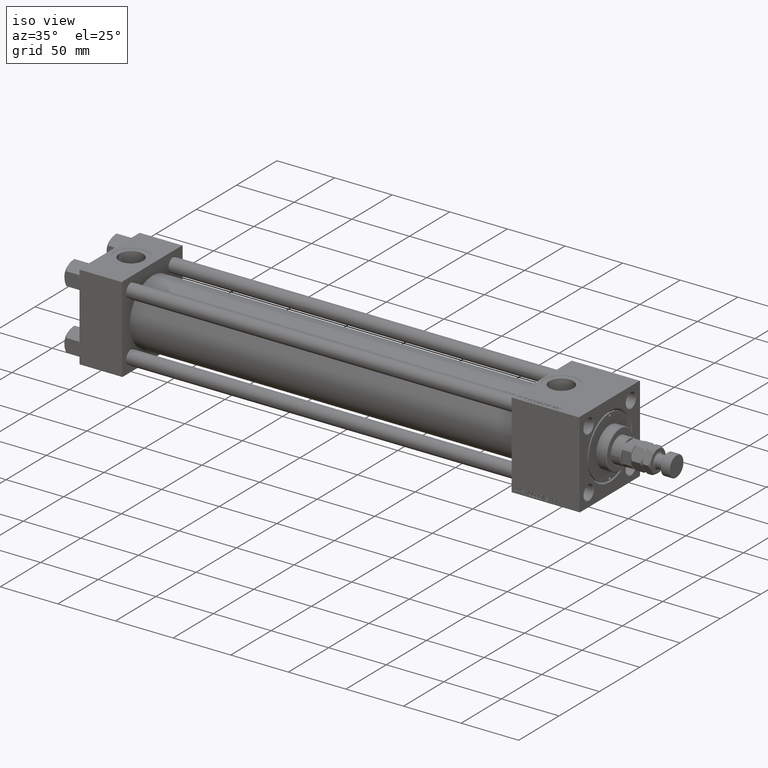
[diagram: clean part render]
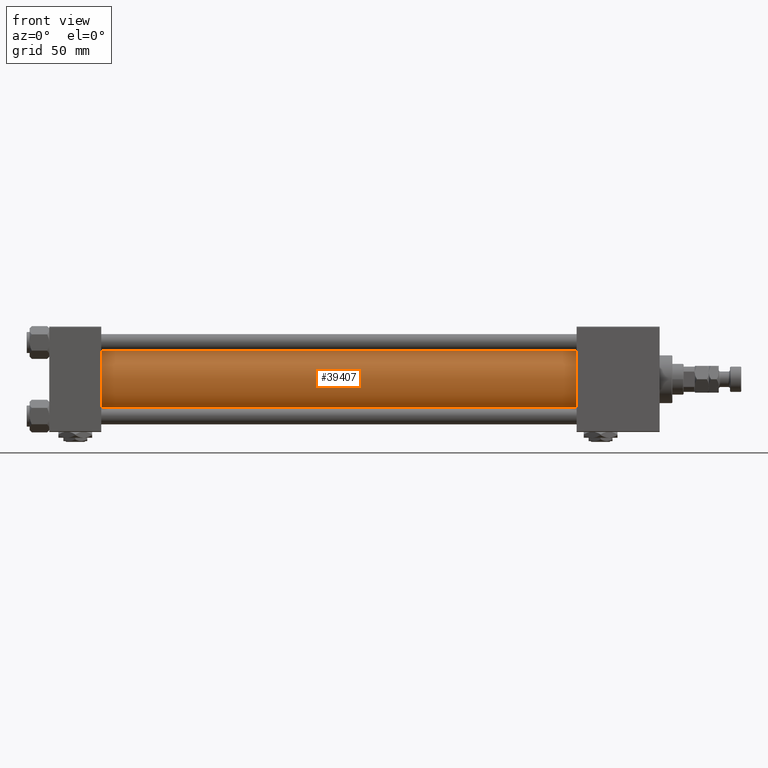
[diagram: tour spotlight — one face highlighted and labeled with its STEP entity id]
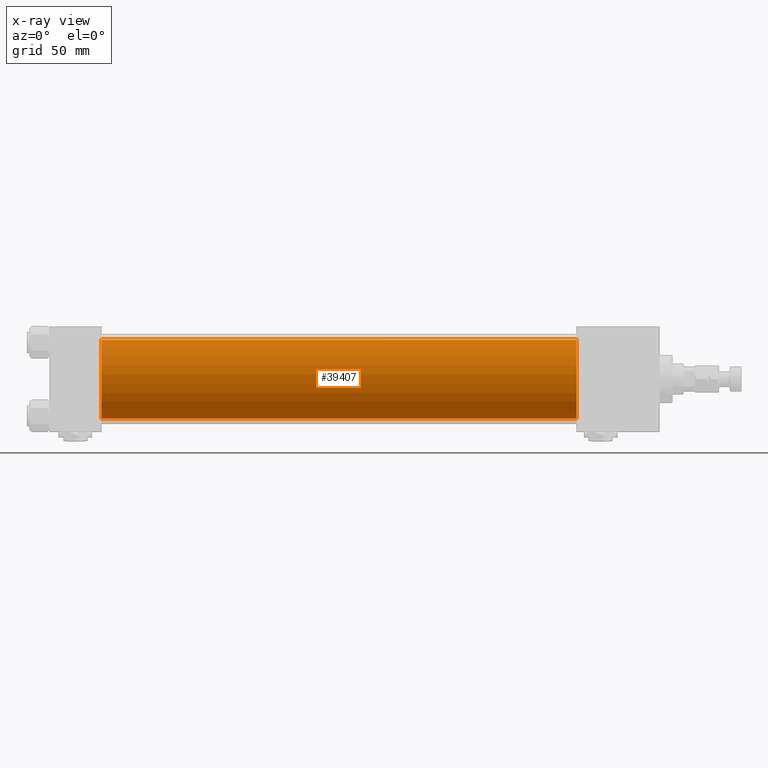
[diagram: x-ray of the same camera — body ghosted, this tour face saturated]
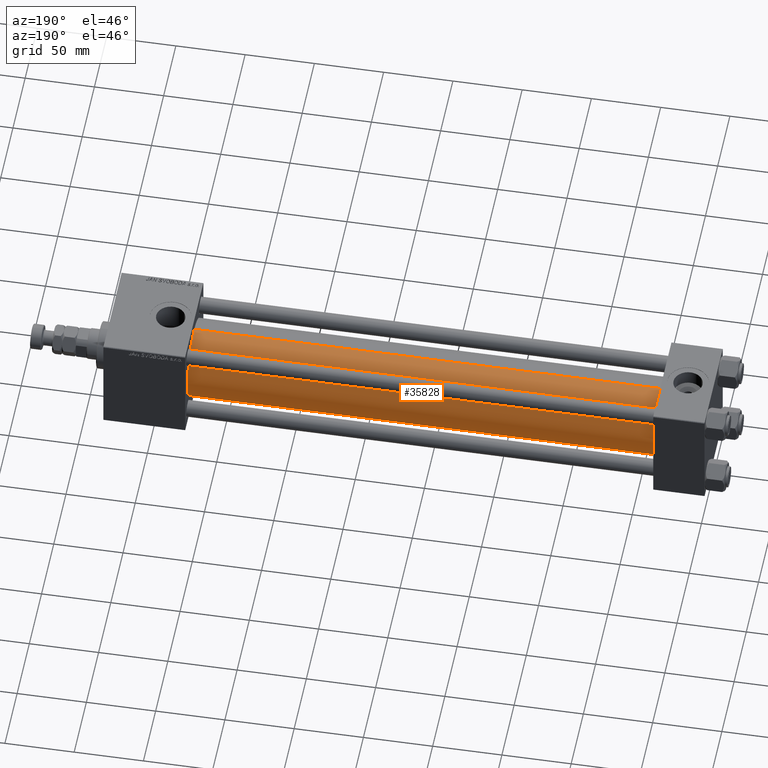
[diagram: tour spotlight — one face highlighted and labeled with its STEP entity id]
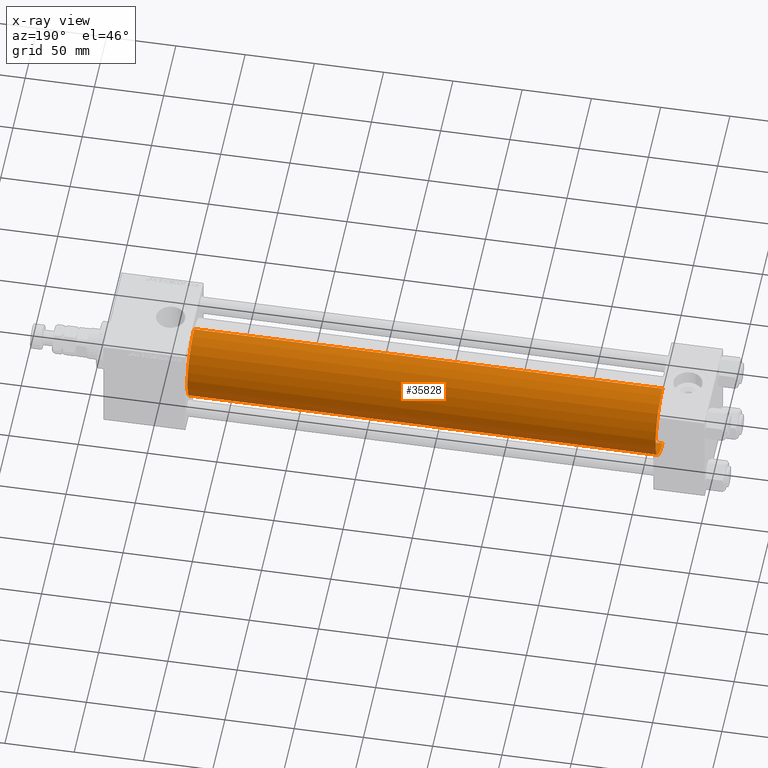
[diagram: x-ray of the same camera — body ghosted, this tour face saturated]
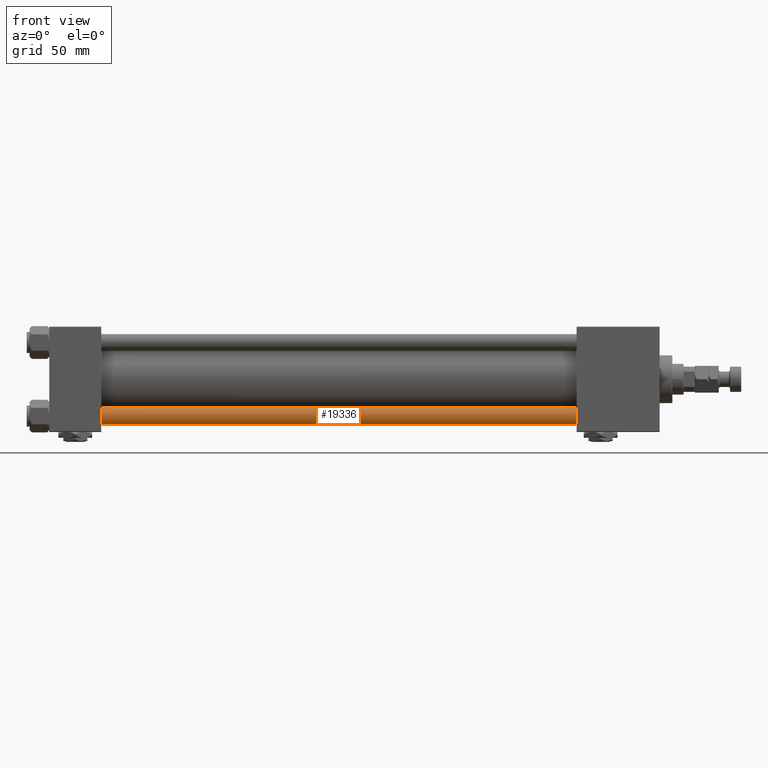
[diagram: tour spotlight — one face highlighted and labeled with its STEP entity id]
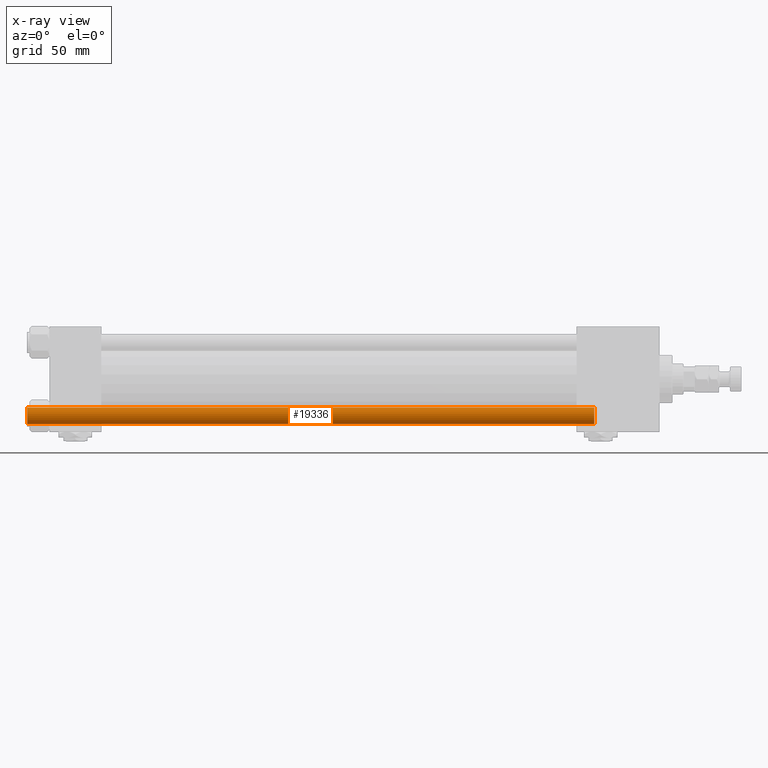
[diagram: x-ray of the same camera — body ghosted, this tour face saturated]
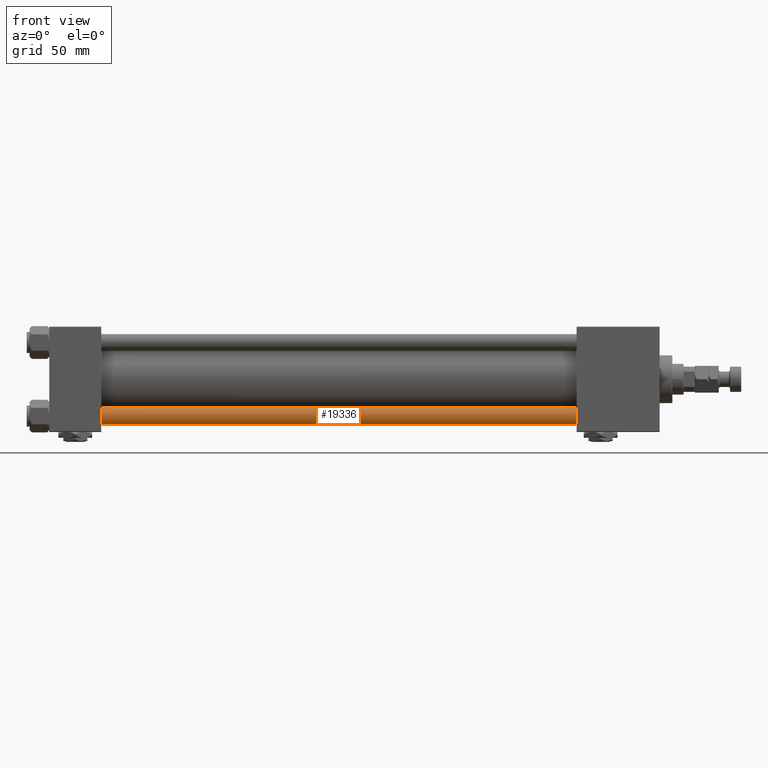
[diagram: tour spotlight — one face highlighted and labeled with its STEP entity id]
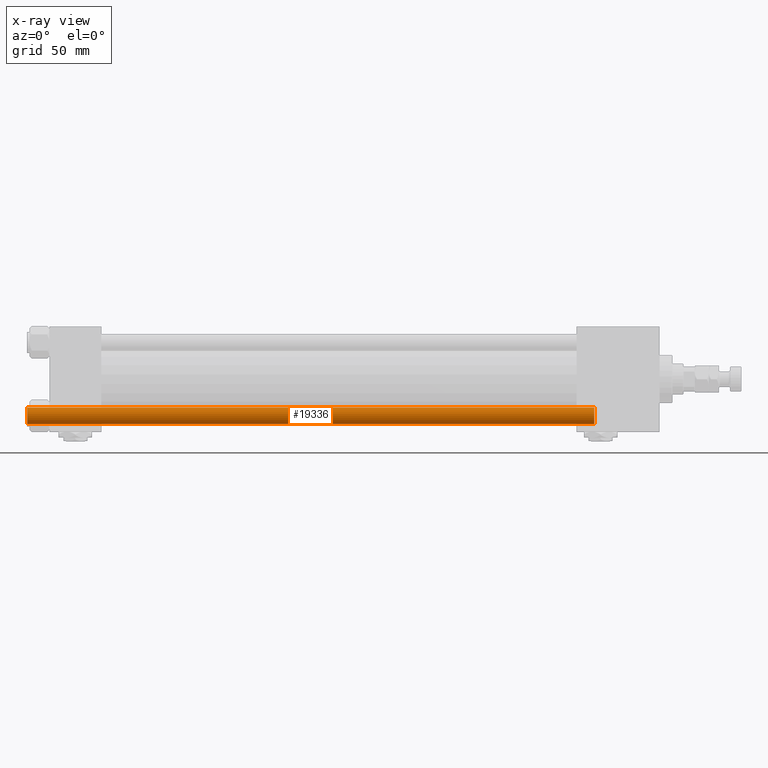
[diagram: x-ray of the same camera — body ghosted, this tour face saturated]
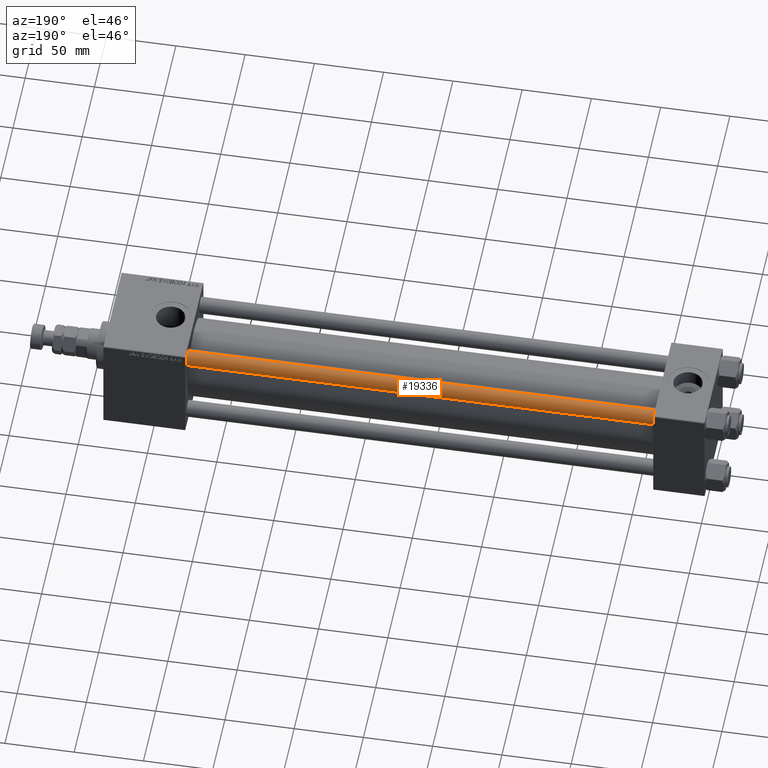
[diagram: tour spotlight — one face highlighted and labeled with its STEP entity id]
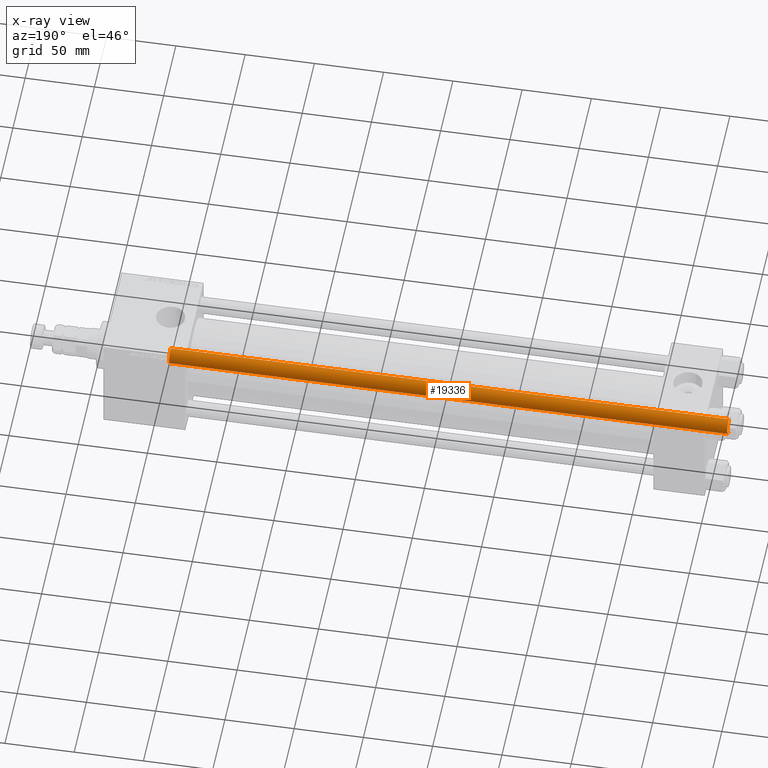
[diagram: x-ray of the same camera — body ghosted, this tour face saturated]
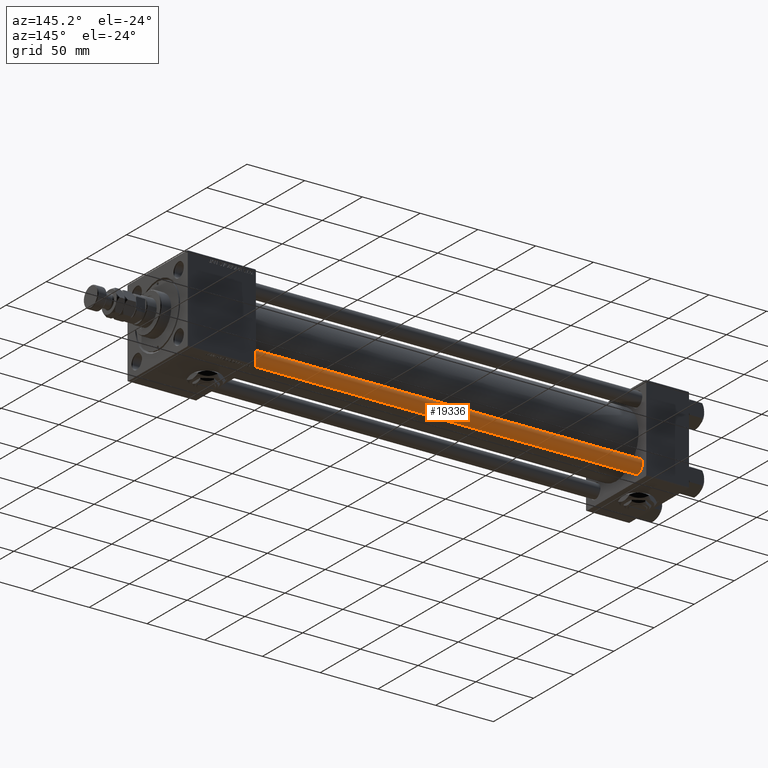
[diagram: tour spotlight — one face highlighted and labeled with its STEP entity id]
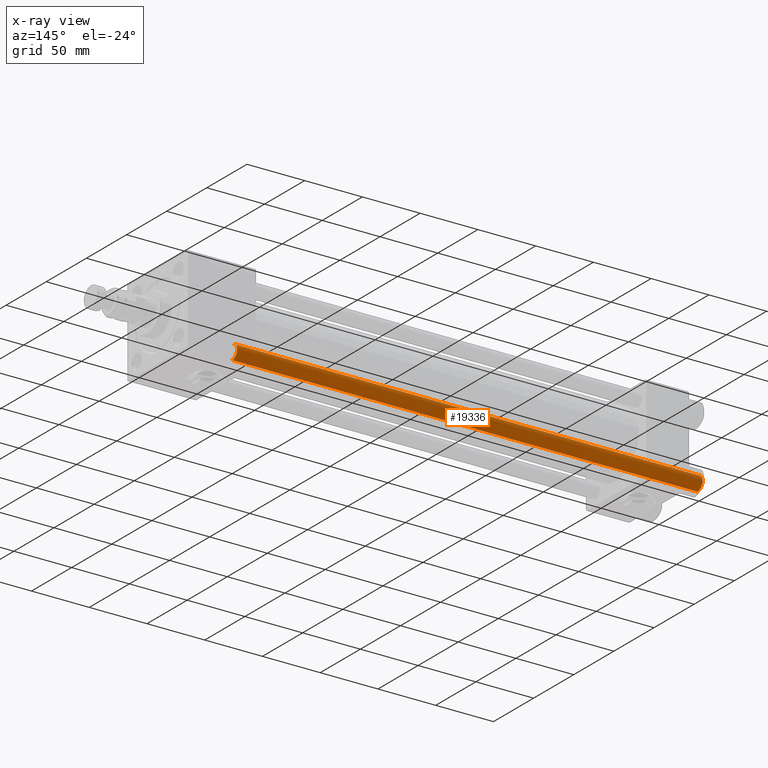
[diagram: x-ray of the same camera — body ghosted, this tour face saturated]
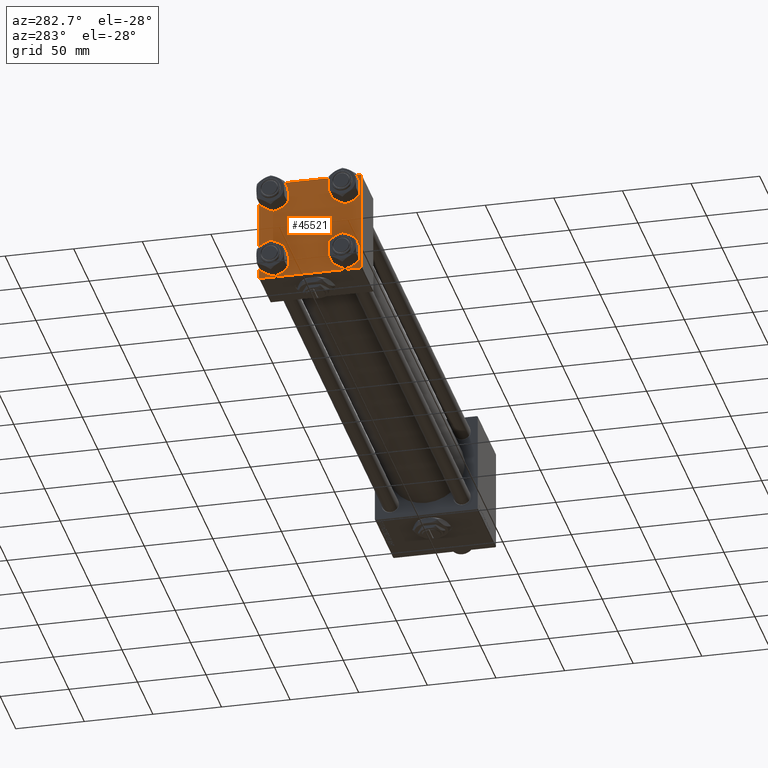
[diagram: tour spotlight — one face highlighted and labeled with its STEP entity id]
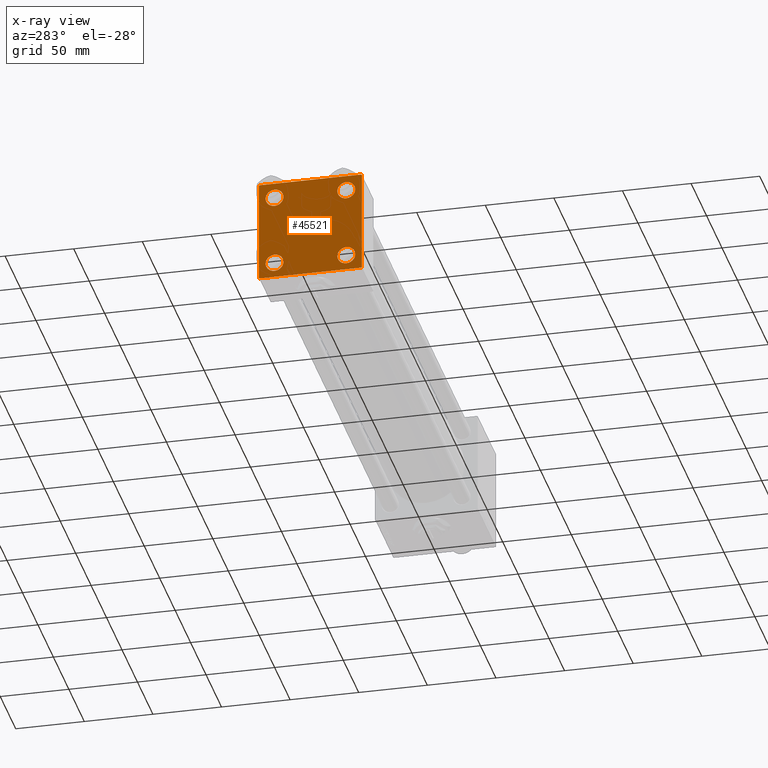
[diagram: x-ray of the same camera — body ghosted, this tour face saturated]
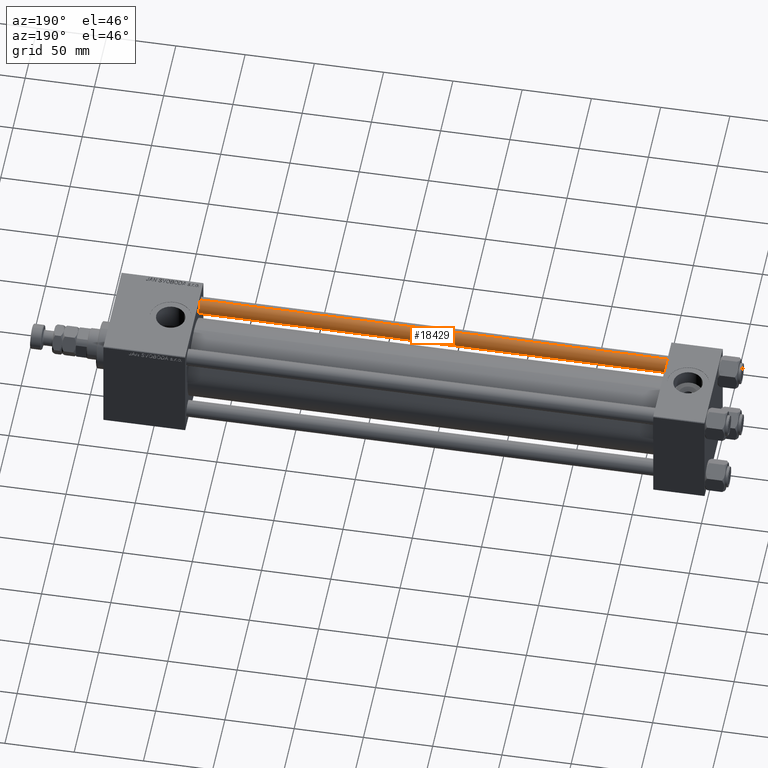
[diagram: tour spotlight — one face highlighted and labeled with its STEP entity id]
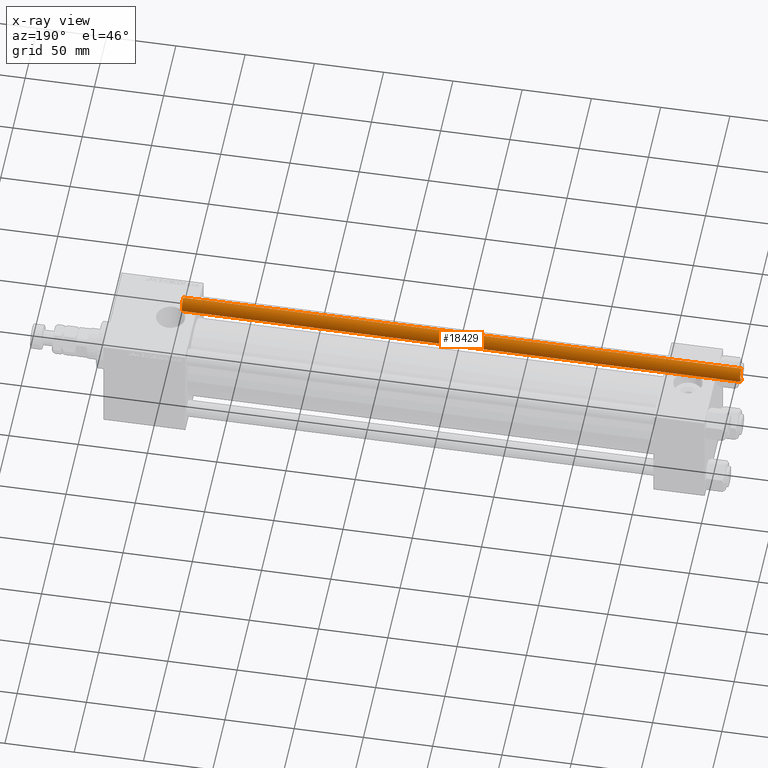
[diagram: x-ray of the same camera — body ghosted, this tour face saturated]
A machine part: a face-by-face anatomy tour. The part has 1307 B-rep faces; the first image is the clean iso view, then the 8 largest visible faces are spotlighted one at a time (largest first), each with its STEP entity span.

Face 1 — front view, entity #39407. An x-ray twin of the same camera follows (body ghosted, this face saturated) — the face is partly hidden behind the body. In plain terms, the highlighted cylindrical surface (partial cylindrical patch) has radius 28 mm, axis along (-1, -0, -0).
Definition (entity closure, byte-faithful):
#2597 = CARTESIAN_POINT ( 'NONE',  ( 36.99999999999997868, -2.602085213965210642E-15, 28.00000000000000000 ) ) ;
#3897 = CIRCLE ( 'NONE', #41440, 28.00000000000000000 ) ;
#4517 = CARTESIAN_POINT ( 'NONE',  ( 375.0000000000000000, -2.602085213965210642E-15, 28.00000000000000000 ) ) ;
#5764 = DIRECTION ( 'NONE',  ( 0.000000000000000000, 0.000000000000000000, -1.000000000000000000 ) ) ;
#6655 = CARTESIAN_POINT ( 'NONE',  ( 375.0000000000000000, -2.602085213965210642E-15, 0.000000000000000000 ) ) ;
#10514 = CIRCLE ( 'NONE', #20097, 28.00000000000000000 ) ;
#10751 = CYLINDRICAL_SURFACE ( 'NONE', #41294, 28.00000000000000000 ) ;
#12271 = VERTEX_POINT ( 'NONE', #2597 ) ;
#13708 = CARTESIAN_POINT ( 'NONE',  ( 375.0000000000000000, 8.269258236473784371E-16, -28.00000000000000000 ) ) ;
#14450 = VECTOR ( 'NONE', #21790, 1000.000000000000000 ) ;
#14716 = EDGE_LOOP ( 'NONE', ( #51267, #48287, #39887, #30124 ) ) ;
#15153 = VERTEX_POINT ( 'NONE', #25644 ) ;
#16330 = VECTOR ( 'NONE', #44386, 1000.000000000000000 ) ;
#17697 = CARTESIAN_POINT ( 'NONE',  ( 375.0000000000000000, -2.602085213965210642E-15, 28.00000000000000000 ) ) ;
#18973 = EDGE_CURVE ( 'NONE', #50337, #12271, #37944, .T. ) ;
#20097 = AXIS2_PLACEMENT_3D ( 'NONE', #31135, #34204, #5764 ) ;
#21790 = DIRECTION ( 'NONE',  ( -1.000000000000000000, -0.000000000000000000, -0.000000000000000000 ) ) ;
#23155 = EDGE_CURVE ( 'NONE', #38482, #15153, #32627, .T. ) ;
#23299 = DIRECTION ( 'NONE',  ( -1.000000000000000000, -0.000000000000000000, -0.000000000000000000 ) ) ;
#25644 = CARTESIAN_POINT ( 'NONE',  ( 36.99999999999997868, 8.269258236473784371E-16, -28.00000000000000000 ) ) ;
#26041 = DIRECTION ( 'NONE',  ( 0.000000000000000000, 0.000000000000000000, 1.000000000000000000 ) ) ;
#26834 = DIRECTION ( 'NONE',  ( 1.000000000000000000, -0.000000000000000000, 0.000000000000000000 ) ) ;
#30124 = ORIENTED_EDGE ( 'NONE', *, *, #42009, .T. ) ;
#31135 = CARTESIAN_POINT ( 'NONE',  ( 375.0000000000000000, -2.602085213965210642E-15, 0.000000000000000000 ) ) ;
#32627 = LINE ( 'NONE', #53686, #16330 ) ;
#32691 = EDGE_CURVE ( 'NONE', #50337, #38482, #10514, .T. ) ;
#34204 = DIRECTION ( 'NONE',  ( 1.000000000000000000, 0.000000000000000000, 0.000000000000000000 ) ) ;
#37944 = LINE ( 'NONE', #17697, #14450 ) ;
#38482 = VERTEX_POINT ( 'NONE', #13708 ) ;
#39407 = ADVANCED_FACE ( 'NONE', ( #48188 ), #10751, .T. ) ;
#39887 = ORIENTED_EDGE ( 'NONE', *, *, #18973, .T. ) ;
#39984 = DIRECTION ( 'NONE',  ( 0.000000000000000000, 0.000000000000000000, 1.000000000000000000 ) ) ;
#41294 = AXIS2_PLACEMENT_3D ( 'NONE', #6655, #23299, #39984 ) ;
#41440 = AXIS2_PLACEMENT_3D ( 'NONE', #47619, #26834, #26041 ) ;
#42009 = EDGE_CURVE ( 'NONE', #12271, #15153, #3897, .T. ) ;
#44386 = DIRECTION ( 'NONE',  ( -1.000000000000000000, -0.000000000000000000, -0.000000000000000000 ) ) ;
#47619 = CARTESIAN_POINT ( 'NONE',  ( 36.99999999999997868, -2.602085213965210642E-15, 0.000000000000000000 ) ) ;
#48188 = FACE_OUTER_BOUND ( 'NONE', #14716, .T. ) ;
#48287 = ORIENTED_EDGE ( 'NONE', *, *, #32691, .F. ) ;
#50337 = VERTEX_POINT ( 'NONE', #4517 ) ;
#51267 = ORIENTED_EDGE ( 'NONE', *, *, #23155, .F. ) ;
#53686 = CARTESIAN_POINT ( 'NONE',  ( 375.0000000000000000, 8.269258236473784371E-16, -28.00000000000000000 ) ) ;

Face 2 — auxiliary view, entity #35828. An x-ray twin of the same camera follows (body ghosted, this face saturated) — the face is partly hidden behind the body. In plain terms, the highlighted cylindrical surface (partial cylindrical patch) has radius 28 mm, axis along (-1, -0, -0).
Definition (entity closure, byte-faithful):
#2597 = CARTESIAN_POINT ( 'NONE',  ( 36.99999999999997868, -2.602085213965210642E-15, 28.00000000000000000 ) ) ;
#4517 = CARTESIAN_POINT ( 'NONE',  ( 375.0000000000000000, -2.602085213965210642E-15, 28.00000000000000000 ) ) ;
#12271 = VERTEX_POINT ( 'NONE', #2597 ) ;
#13669 = ORIENTED_EDGE ( 'NONE', *, *, #23155, .T. ) ;
#13708 = CARTESIAN_POINT ( 'NONE',  ( 375.0000000000000000, 8.269258236473784371E-16, -28.00000000000000000 ) ) ;
#13830 = DIRECTION ( 'NONE',  ( 0.000000000000000000, 0.000000000000000000, 1.000000000000000000 ) ) ;
#14450 = VECTOR ( 'NONE', #21790, 1000.000000000000000 ) ;
#15153 = VERTEX_POINT ( 'NONE', #25644 ) ;
#16135 = CIRCLE ( 'NONE', #20502, 28.00000000000000000 ) ;
#16330 = VECTOR ( 'NONE', #44386, 1000.000000000000000 ) ;
#17697 = CARTESIAN_POINT ( 'NONE',  ( 375.0000000000000000, -2.602085213965210642E-15, 28.00000000000000000 ) ) ;
#18713 = EDGE_LOOP ( 'NONE', ( #24261, #13669, #38484, #44110 ) ) ;
#18973 = EDGE_CURVE ( 'NONE', #50337, #12271, #37944, .T. ) ;
#19469 = EDGE_CURVE ( 'NONE', #38482, #50337, #38079, .T. ) ;
#20502 = AXIS2_PLACEMENT_3D ( 'NONE', #51295, #34620, #13830 ) ;
#21790 = DIRECTION ( 'NONE',  ( -1.000000000000000000, -0.000000000000000000, -0.000000000000000000 ) ) ;
#22826 = DIRECTION ( 'NONE',  ( -1.000000000000000000, -0.000000000000000000, -0.000000000000000000 ) ) ;
#23155 = EDGE_CURVE ( 'NONE', #38482, #15153, #32627, .T. ) ;
#23359 = CYLINDRICAL_SURFACE ( 'NONE', #29836, 28.00000000000000000 ) ;
#24261 = ORIENTED_EDGE ( 'NONE', *, *, #19469, .F. ) ;
#25644 = CARTESIAN_POINT ( 'NONE',  ( 36.99999999999997868, 8.269258236473784371E-16, -28.00000000000000000 ) ) ;
#26629 = DIRECTION ( 'NONE',  ( 0.000000000000000000, 0.000000000000000000, -1.000000000000000000 ) ) ;
#26924 = FACE_OUTER_BOUND ( 'NONE', #18713, .T. ) ;
#27424 = CARTESIAN_POINT ( 'NONE',  ( 375.0000000000000000, -2.602085213965210642E-15, 0.000000000000000000 ) ) ;
#28461 = AXIS2_PLACEMENT_3D ( 'NONE', #27424, #38952, #26629 ) ;
#29836 = AXIS2_PLACEMENT_3D ( 'NONE', #31834, #22826, #52095 ) ;
#31834 = CARTESIAN_POINT ( 'NONE',  ( 375.0000000000000000, -2.602085213965210642E-15, 0.000000000000000000 ) ) ;
#32627 = LINE ( 'NONE', #53686, #16330 ) ;
#34620 = DIRECTION ( 'NONE',  ( 1.000000000000000000, -0.000000000000000000, 0.000000000000000000 ) ) ;
#35828 = ADVANCED_FACE ( 'NONE', ( #26924 ), #23359, .T. ) ;
#37944 = LINE ( 'NONE', #17697, #14450 ) ;
#38079 = CIRCLE ( 'NONE', #28461, 28.00000000000000000 ) ;
#38482 = VERTEX_POINT ( 'NONE', #13708 ) ;
#38484 = ORIENTED_EDGE ( 'NONE', *, *, #43677, .T. ) ;
#38952 = DIRECTION ( 'NONE',  ( 1.000000000000000000, 0.000000000000000000, 0.000000000000000000 ) ) ;
#43677 = EDGE_CURVE ( 'NONE', #15153, #12271, #16135, .T. ) ;
#44110 = ORIENTED_EDGE ( 'NONE', *, *, #18973, .F. ) ;
#44386 = DIRECTION ( 'NONE',  ( -1.000000000000000000, -0.000000000000000000, -0.000000000000000000 ) ) ;
#50337 = VERTEX_POINT ( 'NONE', #4517 ) ;
#51295 = CARTESIAN_POINT ( 'NONE',  ( 36.99999999999997868, -2.602085213965210642E-15, 0.000000000000000000 ) ) ;
#52095 = DIRECTION ( 'NONE',  ( 0.000000000000000000, 0.000000000000000000, 1.000000000000000000 ) ) ;
#53686 = CARTESIAN_POINT ( 'NONE',  ( 375.0000000000000000, 8.269258236473784371E-16, -28.00000000000000000 ) ) ;

Face 3 — front view, entity #19336. An x-ray twin of the same camera follows (body ghosted, this face saturated) — the face is partly hidden behind the body. In plain terms, the highlighted cylindrical surface (edge-blend (fillet) strip) has radius 6 mm, axis along (1, 0, -0).
Definition (entity closure, byte-faithful):
#555 = AXIS2_PLACEMENT_3D ( 'NONE', #29391, #34588, #13796 ) ;
#1133 = AXIS2_PLACEMENT_3D ( 'NONE', #27770, #36273, #7029 ) ;
#1632 = DIRECTION ( 'NONE',  ( -0.000000000000000000, -0.000000000000000000, -1.000000000000000000 ) ) ;
#3339 = VERTEX_POINT ( 'NONE', #28881 ) ;
#4810 = CYLINDRICAL_SURFACE ( 'NONE', #555, 6.000000000000000888 ) ;
#5080 = FACE_OUTER_BOUND ( 'NONE', #40708, .T. ) ;
#6256 = CARTESIAN_POINT ( 'NONE',  ( 6.000000000000000888, 7.347880794884120722E-16, 404.0000000000000000 ) ) ;
#7029 = DIRECTION ( 'NONE',  ( 1.000000000000000000, 0.000000000000000000, 0.000000000000000000 ) ) ;
#8125 = AXIS2_PLACEMENT_3D ( 'NONE', #44703, #50162, #20089 ) ;
#10667 = EDGE_CURVE ( 'NONE', #39303, #27240, #14198, .T. ) ;
#11297 = VECTOR ( 'NONE', #1632, 1000.000000000000000 ) ;
#12855 = VERTEX_POINT ( 'NONE', #19591 ) ;
#13225 = ORIENTED_EDGE ( 'NONE', *, *, #27799, .T. ) ;
#13796 = DIRECTION ( 'NONE',  ( -1.000000000000000000, 0.000000000000000000, 0.000000000000000000 ) ) ;
#14198 = CIRCLE ( 'NONE', #8125, 6.000000000000000888 ) ;
#15181 = CIRCLE ( 'NONE', #1133, 6.000000000000000888 ) ;
#17142 = LINE ( 'NONE', #42552, #21203 ) ;
#17411 = DIRECTION ( 'NONE',  ( -0.000000000000000000, -0.000000000000000000, -1.000000000000000000 ) ) ;
#19336 = ADVANCED_FACE ( 'NONE', ( #5080 ), #4810, .T. ) ;
#19591 = CARTESIAN_POINT ( 'NONE',  ( -6.000000000000000888, 0.000000000000000000, 403.5000000000000000 ) ) ;
#20089 = DIRECTION ( 'NONE',  ( 1.000000000000000000, 0.000000000000000000, 0.000000000000000000 ) ) ;
#21203 = VECTOR ( 'NONE', #17411, 1000.000000000000000 ) ;
#26311 = ORIENTED_EDGE ( 'NONE', *, *, #39004, .F. ) ;
#27240 = VERTEX_POINT ( 'NONE', #31695 ) ;
#27770 = CARTESIAN_POINT ( 'NONE',  ( 0.000000000000000000, 0.000000000000000000, 403.5000000000000000 ) ) ;
#27799 = EDGE_CURVE ( 'NONE', #3339, #39303, #51377, .T. ) ;
#28881 = CARTESIAN_POINT ( 'NONE',  ( 6.000000000000000888, 7.347880794884120722E-16, 403.5000000000000000 ) ) ;
#29391 = CARTESIAN_POINT ( 'NONE',  ( 0.000000000000000000, 0.000000000000000000, 404.0000000000000000 ) ) ;
#31695 = CARTESIAN_POINT ( 'NONE',  ( -6.000000000000000888, 0.000000000000000000, 0.5000000000000559552 ) ) ;
#34588 = DIRECTION ( 'NONE',  ( -0.000000000000000000, -0.000000000000000000, -1.000000000000000000 ) ) ;
#36273 = DIRECTION ( 'NONE',  ( 0.000000000000000000, 0.000000000000000000, -1.000000000000000000 ) ) ;
#39004 = EDGE_CURVE ( 'NONE', #12855, #27240, #17142, .T. ) ;
#39303 = VERTEX_POINT ( 'NONE', #43283 ) ;
#40708 = EDGE_LOOP ( 'NONE', ( #45790, #13225, #41233, #26311 ) ) ;
#41233 = ORIENTED_EDGE ( 'NONE', *, *, #10667, .T. ) ;
#41524 = EDGE_CURVE ( 'NONE', #12855, #3339, #15181, .T. ) ;
#42552 = CARTESIAN_POINT ( 'NONE',  ( -6.000000000000000888, 0.000000000000000000, 404.0000000000000000 ) ) ;
#43283 = CARTESIAN_POINT ( 'NONE',  ( 6.000000000000000888, 7.347880794884120722E-16, 0.5000000000000559552 ) ) ;
#44703 = CARTESIAN_POINT ( 'NONE',  ( 0.000000000000000000, 0.000000000000000000, 0.5000000000000559552 ) ) ;
#45790 = ORIENTED_EDGE ( 'NONE', *, *, #41524, .T. ) ;
#50162 = DIRECTION ( 'NONE',  ( -0.000000000000000000, -0.000000000000000000, 1.000000000000000000 ) ) ;
#51377 = LINE ( 'NONE', #6256, #11297 ) ;

Face 4 — front view, entity #19336. An x-ray twin of the same camera follows (body ghosted, this face saturated) — the face is partly hidden behind the body. In plain terms, the highlighted cylindrical surface (edge-blend (fillet) strip) has radius 6 mm, axis along (-1, -0, -0).
Definition (entity closure, byte-faithful):
#555 = AXIS2_PLACEMENT_3D ( 'NONE', #29391, #34588, #13796 ) ;
#1133 = AXIS2_PLACEMENT_3D ( 'NONE', #27770, #36273, #7029 ) ;
#1632 = DIRECTION ( 'NONE',  ( -0.000000000000000000, -0.000000000000000000, -1.000000000000000000 ) ) ;
#3339 = VERTEX_POINT ( 'NONE', #28881 ) ;
#4810 = CYLINDRICAL_SURFACE ( 'NONE', #555, 6.000000000000000888 ) ;
#5080 = FACE_OUTER_BOUND ( 'NONE', #40708, .T. ) ;
#6256 = CARTESIAN_POINT ( 'NONE',  ( 6.000000000000000888, 7.347880794884120722E-16, 404.0000000000000000 ) ) ;
#7029 = DIRECTION ( 'NONE',  ( 1.000000000000000000, 0.000000000000000000, 0.000000000000000000 ) ) ;
#8125 = AXIS2_PLACEMENT_3D ( 'NONE', #44703, #50162, #20089 ) ;
#10667 = EDGE_CURVE ( 'NONE', #39303, #27240, #14198, .T. ) ;
#11297 = VECTOR ( 'NONE', #1632, 1000.000000000000000 ) ;
#12855 = VERTEX_POINT ( 'NONE', #19591 ) ;
#13225 = ORIENTED_EDGE ( 'NONE', *, *, #27799, .T. ) ;
#13796 = DIRECTION ( 'NONE',  ( -1.000000000000000000, 0.000000000000000000, 0.000000000000000000 ) ) ;
#14198 = CIRCLE ( 'NONE', #8125, 6.000000000000000888 ) ;
#15181 = CIRCLE ( 'NONE', #1133, 6.000000000000000888 ) ;
#17142 = LINE ( 'NONE', #42552, #21203 ) ;
#17411 = DIRECTION ( 'NONE',  ( -0.000000000000000000, -0.000000000000000000, -1.000000000000000000 ) ) ;
#19336 = ADVANCED_FACE ( 'NONE', ( #5080 ), #4810, .T. ) ;
#19591 = CARTESIAN_POINT ( 'NONE',  ( -6.000000000000000888, 0.000000000000000000, 403.5000000000000000 ) ) ;
#20089 = DIRECTION ( 'NONE',  ( 1.000000000000000000, 0.000000000000000000, 0.000000000000000000 ) ) ;
#21203 = VECTOR ( 'NONE', #17411, 1000.000000000000000 ) ;
#26311 = ORIENTED_EDGE ( 'NONE', *, *, #39004, .F. ) ;
#27240 = VERTEX_POINT ( 'NONE', #31695 ) ;
#27770 = CARTESIAN_POINT ( 'NONE',  ( 0.000000000000000000, 0.000000000000000000, 403.5000000000000000 ) ) ;
#27799 = EDGE_CURVE ( 'NONE', #3339, #39303, #51377, .T. ) ;
#28881 = CARTESIAN_POINT ( 'NONE',  ( 6.000000000000000888, 7.347880794884120722E-16, 403.5000000000000000 ) ) ;
#29391 = CARTESIAN_POINT ( 'NONE',  ( 0.000000000000000000, 0.000000000000000000, 404.0000000000000000 ) ) ;
#31695 = CARTESIAN_POINT ( 'NONE',  ( -6.000000000000000888, 0.000000000000000000, 0.5000000000000559552 ) ) ;
#34588 = DIRECTION ( 'NONE',  ( -0.000000000000000000, -0.000000000000000000, -1.000000000000000000 ) ) ;
#36273 = DIRECTION ( 'NONE',  ( 0.000000000000000000, 0.000000000000000000, -1.000000000000000000 ) ) ;
#39004 = EDGE_CURVE ( 'NONE', #12855, #27240, #17142, .T. ) ;
#39303 = VERTEX_POINT ( 'NONE', #43283 ) ;
#40708 = EDGE_LOOP ( 'NONE', ( #45790, #13225, #41233, #26311 ) ) ;
#41233 = ORIENTED_EDGE ( 'NONE', *, *, #10667, .T. ) ;
#41524 = EDGE_CURVE ( 'NONE', #12855, #3339, #15181, .T. ) ;
#42552 = CARTESIAN_POINT ( 'NONE',  ( -6.000000000000000888, 0.000000000000000000, 404.0000000000000000 ) ) ;
#43283 = CARTESIAN_POINT ( 'NONE',  ( 6.000000000000000888, 7.347880794884120722E-16, 0.5000000000000559552 ) ) ;
#44703 = CARTESIAN_POINT ( 'NONE',  ( 0.000000000000000000, 0.000000000000000000, 0.5000000000000559552 ) ) ;
#45790 = ORIENTED_EDGE ( 'NONE', *, *, #41524, .T. ) ;
#50162 = DIRECTION ( 'NONE',  ( -0.000000000000000000, -0.000000000000000000, 1.000000000000000000 ) ) ;
#51377 = LINE ( 'NONE', #6256, #11297 ) ;

Face 5 — auxiliary view, entity #19336. An x-ray twin of the same camera follows (body ghosted, this face saturated) — the face is partly hidden behind the body. In plain terms, the highlighted cylindrical surface (edge-blend (fillet) strip) has radius 6 mm, axis along (-1, 0, 0).
Definition (entity closure, byte-faithful):
#555 = AXIS2_PLACEMENT_3D ( 'NONE', #29391, #34588, #13796 ) ;
#1133 = AXIS2_PLACEMENT_3D ( 'NONE', #27770, #36273, #7029 ) ;
#1632 = DIRECTION ( 'NONE',  ( -0.000000000000000000, -0.000000000000000000, -1.000000000000000000 ) ) ;
#3339 = VERTEX_POINT ( 'NONE', #28881 ) ;
#4810 = CYLINDRICAL_SURFACE ( 'NONE', #555, 6.000000000000000888 ) ;
#5080 = FACE_OUTER_BOUND ( 'NONE', #40708, .T. ) ;
#6256 = CARTESIAN_POINT ( 'NONE',  ( 6.000000000000000888, 7.347880794884120722E-16, 404.0000000000000000 ) ) ;
#7029 = DIRECTION ( 'NONE',  ( 1.000000000000000000, 0.000000000000000000, 0.000000000000000000 ) ) ;
#8125 = AXIS2_PLACEMENT_3D ( 'NONE', #44703, #50162, #20089 ) ;
#10667 = EDGE_CURVE ( 'NONE', #39303, #27240, #14198, .T. ) ;
#11297 = VECTOR ( 'NONE', #1632, 1000.000000000000000 ) ;
#12855 = VERTEX_POINT ( 'NONE', #19591 ) ;
#13225 = ORIENTED_EDGE ( 'NONE', *, *, #27799, .T. ) ;
#13796 = DIRECTION ( 'NONE',  ( -1.000000000000000000, 0.000000000000000000, 0.000000000000000000 ) ) ;
#14198 = CIRCLE ( 'NONE', #8125, 6.000000000000000888 ) ;
#15181 = CIRCLE ( 'NONE', #1133, 6.000000000000000888 ) ;
#17142 = LINE ( 'NONE', #42552, #21203 ) ;
#17411 = DIRECTION ( 'NONE',  ( -0.000000000000000000, -0.000000000000000000, -1.000000000000000000 ) ) ;
#19336 = ADVANCED_FACE ( 'NONE', ( #5080 ), #4810, .T. ) ;
#19591 = CARTESIAN_POINT ( 'NONE',  ( -6.000000000000000888, 0.000000000000000000, 403.5000000000000000 ) ) ;
#20089 = DIRECTION ( 'NONE',  ( 1.000000000000000000, 0.000000000000000000, 0.000000000000000000 ) ) ;
#21203 = VECTOR ( 'NONE', #17411, 1000.000000000000000 ) ;
#26311 = ORIENTED_EDGE ( 'NONE', *, *, #39004, .F. ) ;
#27240 = VERTEX_POINT ( 'NONE', #31695 ) ;
#27770 = CARTESIAN_POINT ( 'NONE',  ( 0.000000000000000000, 0.000000000000000000, 403.5000000000000000 ) ) ;
#27799 = EDGE_CURVE ( 'NONE', #3339, #39303, #51377, .T. ) ;
#28881 = CARTESIAN_POINT ( 'NONE',  ( 6.000000000000000888, 7.347880794884120722E-16, 403.5000000000000000 ) ) ;
#29391 = CARTESIAN_POINT ( 'NONE',  ( 0.000000000000000000, 0.000000000000000000, 404.0000000000000000 ) ) ;
#31695 = CARTESIAN_POINT ( 'NONE',  ( -6.000000000000000888, 0.000000000000000000, 0.5000000000000559552 ) ) ;
#34588 = DIRECTION ( 'NONE',  ( -0.000000000000000000, -0.000000000000000000, -1.000000000000000000 ) ) ;
#36273 = DIRECTION ( 'NONE',  ( 0.000000000000000000, 0.000000000000000000, -1.000000000000000000 ) ) ;
#39004 = EDGE_CURVE ( 'NONE', #12855, #27240, #17142, .T. ) ;
#39303 = VERTEX_POINT ( 'NONE', #43283 ) ;
#40708 = EDGE_LOOP ( 'NONE', ( #45790, #13225, #41233, #26311 ) ) ;
#41233 = ORIENTED_EDGE ( 'NONE', *, *, #10667, .T. ) ;
#41524 = EDGE_CURVE ( 'NONE', #12855, #3339, #15181, .T. ) ;
#42552 = CARTESIAN_POINT ( 'NONE',  ( -6.000000000000000888, 0.000000000000000000, 404.0000000000000000 ) ) ;
#43283 = CARTESIAN_POINT ( 'NONE',  ( 6.000000000000000888, 7.347880794884120722E-16, 0.5000000000000559552 ) ) ;
#44703 = CARTESIAN_POINT ( 'NONE',  ( 0.000000000000000000, 0.000000000000000000, 0.5000000000000559552 ) ) ;
#45790 = ORIENTED_EDGE ( 'NONE', *, *, #41524, .T. ) ;
#50162 = DIRECTION ( 'NONE',  ( -0.000000000000000000, -0.000000000000000000, 1.000000000000000000 ) ) ;
#51377 = LINE ( 'NONE', #6256, #11297 ) ;

Face 6 — auxiliary view, entity #19336. An x-ray twin of the same camera follows (body ghosted, this face saturated) — the face is partly hidden behind the body. In plain terms, the highlighted cylindrical surface (edge-blend (fillet) strip) has radius 6 mm, axis along (1, -0, 0).
Definition (entity closure, byte-faithful):
#555 = AXIS2_PLACEMENT_3D ( 'NONE', #29391, #34588, #13796 ) ;
#1133 = AXIS2_PLACEMENT_3D ( 'NONE', #27770, #36273, #7029 ) ;
#1632 = DIRECTION ( 'NONE',  ( -0.000000000000000000, -0.000000000000000000, -1.000000000000000000 ) ) ;
#3339 = VERTEX_POINT ( 'NONE', #28881 ) ;
#4810 = CYLINDRICAL_SURFACE ( 'NONE', #555, 6.000000000000000888 ) ;
#5080 = FACE_OUTER_BOUND ( 'NONE', #40708, .T. ) ;
#6256 = CARTESIAN_POINT ( 'NONE',  ( 6.000000000000000888, 7.347880794884120722E-16, 404.0000000000000000 ) ) ;
#7029 = DIRECTION ( 'NONE',  ( 1.000000000000000000, 0.000000000000000000, 0.000000000000000000 ) ) ;
#8125 = AXIS2_PLACEMENT_3D ( 'NONE', #44703, #50162, #20089 ) ;
#10667 = EDGE_CURVE ( 'NONE', #39303, #27240, #14198, .T. ) ;
#11297 = VECTOR ( 'NONE', #1632, 1000.000000000000000 ) ;
#12855 = VERTEX_POINT ( 'NONE', #19591 ) ;
#13225 = ORIENTED_EDGE ( 'NONE', *, *, #27799, .T. ) ;
#13796 = DIRECTION ( 'NONE',  ( -1.000000000000000000, 0.000000000000000000, 0.000000000000000000 ) ) ;
#14198 = CIRCLE ( 'NONE', #8125, 6.000000000000000888 ) ;
#15181 = CIRCLE ( 'NONE', #1133, 6.000000000000000888 ) ;
#17142 = LINE ( 'NONE', #42552, #21203 ) ;
#17411 = DIRECTION ( 'NONE',  ( -0.000000000000000000, -0.000000000000000000, -1.000000000000000000 ) ) ;
#19336 = ADVANCED_FACE ( 'NONE', ( #5080 ), #4810, .T. ) ;
#19591 = CARTESIAN_POINT ( 'NONE',  ( -6.000000000000000888, 0.000000000000000000, 403.5000000000000000 ) ) ;
#20089 = DIRECTION ( 'NONE',  ( 1.000000000000000000, 0.000000000000000000, 0.000000000000000000 ) ) ;
#21203 = VECTOR ( 'NONE', #17411, 1000.000000000000000 ) ;
#26311 = ORIENTED_EDGE ( 'NONE', *, *, #39004, .F. ) ;
#27240 = VERTEX_POINT ( 'NONE', #31695 ) ;
#27770 = CARTESIAN_POINT ( 'NONE',  ( 0.000000000000000000, 0.000000000000000000, 403.5000000000000000 ) ) ;
#27799 = EDGE_CURVE ( 'NONE', #3339, #39303, #51377, .T. ) ;
#28881 = CARTESIAN_POINT ( 'NONE',  ( 6.000000000000000888, 7.347880794884120722E-16, 403.5000000000000000 ) ) ;
#29391 = CARTESIAN_POINT ( 'NONE',  ( 0.000000000000000000, 0.000000000000000000, 404.0000000000000000 ) ) ;
#31695 = CARTESIAN_POINT ( 'NONE',  ( -6.000000000000000888, 0.000000000000000000, 0.5000000000000559552 ) ) ;
#34588 = DIRECTION ( 'NONE',  ( -0.000000000000000000, -0.000000000000000000, -1.000000000000000000 ) ) ;
#36273 = DIRECTION ( 'NONE',  ( 0.000000000000000000, 0.000000000000000000, -1.000000000000000000 ) ) ;
#39004 = EDGE_CURVE ( 'NONE', #12855, #27240, #17142, .T. ) ;
#39303 = VERTEX_POINT ( 'NONE', #43283 ) ;
#40708 = EDGE_LOOP ( 'NONE', ( #45790, #13225, #41233, #26311 ) ) ;
#41233 = ORIENTED_EDGE ( 'NONE', *, *, #10667, .T. ) ;
#41524 = EDGE_CURVE ( 'NONE', #12855, #3339, #15181, .T. ) ;
#42552 = CARTESIAN_POINT ( 'NONE',  ( -6.000000000000000888, 0.000000000000000000, 404.0000000000000000 ) ) ;
#43283 = CARTESIAN_POINT ( 'NONE',  ( 6.000000000000000888, 7.347880794884120722E-16, 0.5000000000000559552 ) ) ;
#44703 = CARTESIAN_POINT ( 'NONE',  ( 0.000000000000000000, 0.000000000000000000, 0.5000000000000559552 ) ) ;
#45790 = ORIENTED_EDGE ( 'NONE', *, *, #41524, .T. ) ;
#50162 = DIRECTION ( 'NONE',  ( -0.000000000000000000, -0.000000000000000000, 1.000000000000000000 ) ) ;
#51377 = LINE ( 'NONE', #6256, #11297 ) ;

Face 7 — auxiliary view, entity #45521. An x-ray twin of the same camera follows (body ghosted, this face saturated) — the face is partly hidden behind the body. In plain terms, the highlighted planar face has unit normal (-1, 0, 0).
Definition (entity closure, byte-faithful):
#45 = CARTESIAN_POINT ( 'NONE',  ( 0.000000000000000000, -37.24999999999975842, -37.25000000000027001 ) ) ;
#69 = CIRCLE ( 'NONE', #27981, 6.500000000000023093 ) ;
#839 = ORIENTED_EDGE ( 'NONE', *, *, #32742, .T. ) ;
#1100 = CARTESIAN_POINT ( 'NONE',  ( 0.000000000000000000, 26.14999999999999858, -26.15000000000000213 ) ) ;
#1737 = VERTEX_POINT ( 'NONE', #18712 ) ;
#1799 = FACE_BOUND ( 'NONE', #16477, .T. ) ;
#1912 = CARTESIAN_POINT ( 'NONE',  ( 0.000000000000000000, 37.49999999999999289, 37.50000000000000000 ) ) ;
#1974 = EDGE_LOOP ( 'NONE', ( #36408, #33106 ) ) ;
#2176 = DIRECTION ( 'NONE',  ( 0.000000000000000000, -1.000000000000000000, -9.251858538542972814E-17 ) ) ;
#2435 = LINE ( 'NONE', #19626, #37223 ) ;
#2508 = EDGE_CURVE ( 'NONE', #23621, #16972, #16667, .T. ) ;
#2534 = VECTOR ( 'NONE', #50427, 1000.000000000000000 ) ;
#2724 = DIRECTION ( 'NONE',  ( 0.000000000000000000, 0.7071067811865474617, -0.7071067811865474617 ) ) ;
#4353 = DIRECTION ( 'NONE',  ( 0.000000000000000000, 9.251858538542971581E-17, -1.000000000000000000 ) ) ;
#4832 = VERTEX_POINT ( 'NONE', #15370 ) ;
#4892 = CARTESIAN_POINT ( 'NONE',  ( 0.000000000000000000, -37.50000000000000711, 37.49999999999999289 ) ) ;
#5047 = CARTESIAN_POINT ( 'NONE',  ( 0.000000000000000000, 37.49999999999999289, 37.50000000000000000 ) ) ;
#5180 = CARTESIAN_POINT ( 'NONE',  ( 0.000000000000000000, -26.14999999999999147, 32.65000000000003411 ) ) ;
#6103 = ORIENTED_EDGE ( 'NONE', *, *, #33687, .T. ) ;
#7090 = CARTESIAN_POINT ( 'NONE',  ( 0.000000000000000000, 37.24999999999999289, 37.24999999999999289 ) ) ;
#7233 = DIRECTION ( 'NONE',  ( -1.000000000000000000, 0.000000000000000000, -0.000000000000000000 ) ) ;
#8120 = CARTESIAN_POINT ( 'NONE',  ( 0.000000000000000000, 26.14999999999999858, 19.64999999999998437 ) ) ;
#8174 = LINE ( 'NONE', #4892, #37341 ) ;
#8344 = EDGE_LOOP ( 'NONE', ( #21686, #51725 ) ) ;
#8372 = CARTESIAN_POINT ( 'NONE',  ( 0.000000000000000000, 26.14999999999999858, -32.65000000000001990 ) ) ;
#9454 = DIRECTION ( 'NONE',  ( 1.000000000000000000, -0.000000000000000000, 0.000000000000000000 ) ) ;
#9830 = LINE ( 'NONE', #1912, #19952 ) ;
#10304 = ORIENTED_EDGE ( 'NONE', *, *, #32676, .T. ) ;
#10821 = CARTESIAN_POINT ( 'NONE',  ( 0.000000000000000000, -26.14999999999999147, 26.15000000000000924 ) ) ;
#10857 = CARTESIAN_POINT ( 'NONE',  ( 0.000000000000000000, -37.50000000000000000, -37.00000000000003553 ) ) ;
#11401 = CARTESIAN_POINT ( 'NONE',  ( 0.000000000000000000, -26.14999999999999147, 19.64999999999999147 ) ) ;
#11596 = CARTESIAN_POINT ( 'NONE',  ( 0.000000000000000000, 0.000000000000000000, 0.000000000000000000 ) ) ;
#11718 = VERTEX_POINT ( 'NONE', #18251 ) ;
#12455 = VERTEX_POINT ( 'NONE', #12950 ) ;
#12524 = VERTEX_POINT ( 'NONE', #35270 ) ;
#12950 = CARTESIAN_POINT ( 'NONE',  ( 0.000000000000000000, 37.49999999999999289, 37.00000000000000000 ) ) ;
#13147 = VECTOR ( 'NONE', #14473, 1000.000000000000000 ) ;
#14473 = DIRECTION ( 'NONE',  ( 0.000000000000000000, -0.7071067811865524577, 0.7071067811865426878 ) ) ;
#14516 = CARTESIAN_POINT ( 'NONE',  ( 0.000000000000000000, 26.14999999999999858, 26.15000000000000213 ) ) ;
#14574 = ORIENTED_EDGE ( 'NONE', *, *, #52622, .T. ) ;
#14985 = AXIS2_PLACEMENT_3D ( 'NONE', #49331, #53981, #29361 ) ;
#15269 = EDGE_LOOP ( 'NONE', ( #42110, #14574, #22931, #10304, #28023, #839, #24396, #27374 ) ) ;
#15370 = CARTESIAN_POINT ( 'NONE',  ( 0.000000000000000000, 36.99999999999999289, 37.50000000000000000 ) ) ;
#15388 = VERTEX_POINT ( 'NONE', #8372 ) ;
#16477 = EDGE_LOOP ( 'NONE', ( #6103, #22591 ) ) ;
#16667 = CIRCLE ( 'NONE', #20138, 6.500000000000023093 ) ;
#16972 = VERTEX_POINT ( 'NONE', #5180 ) ;
#17913 = DIRECTION ( 'NONE',  ( 0.000000000000000000, 0.000000000000000000, 1.000000000000000000 ) ) ;
#17916 = DIRECTION ( 'NONE',  ( 1.000000000000000000, -0.000000000000000000, 0.000000000000000000 ) ) ;
#18251 = CARTESIAN_POINT ( 'NONE',  ( 0.000000000000000000, 26.14999999999999858, 32.65000000000002700 ) ) ;
#18446 = FACE_OUTER_BOUND ( 'NONE', #15269, .T. ) ;
#18712 = CARTESIAN_POINT ( 'NONE',  ( 0.000000000000000000, -37.00000000000000711, 37.49999999999999289 ) ) ;
#19626 = CARTESIAN_POINT ( 'NONE',  ( 0.000000000000000000, 37.49999999999999289, -37.50000000000000000 ) ) ;
#19952 = VECTOR ( 'NONE', #42637, 1000.000000000000000 ) ;
#20056 = DIRECTION ( 'NONE',  ( -0.000000000000000000, 0.000000000000000000, 1.000000000000000000 ) ) ;
#20138 = AXIS2_PLACEMENT_3D ( 'NONE', #25585, #9454, #17913 ) ;
#21073 = ORIENTED_EDGE ( 'NONE', *, *, #28113, .T. ) ;
#21301 = CARTESIAN_POINT ( 'NONE',  ( 0.000000000000000000, -26.14999999999999147, -26.15000000000000924 ) ) ;
#21412 = VERTEX_POINT ( 'NONE', #48581 ) ;
#21686 = ORIENTED_EDGE ( 'NONE', *, *, #23784, .T. ) ;
#21851 = DIRECTION ( 'NONE',  ( 1.000000000000000000, -0.000000000000000000, 0.000000000000000000 ) ) ;
#22591 = ORIENTED_EDGE ( 'NONE', *, *, #35899, .T. ) ;
#22931 = ORIENTED_EDGE ( 'NONE', *, *, #46814, .T. ) ;
#22987 = DIRECTION ( 'NONE',  ( 1.000000000000000000, -0.000000000000000000, 0.000000000000000000 ) ) ;
#23069 = FACE_BOUND ( 'NONE', #32007, .T. ) ;
#23621 = VERTEX_POINT ( 'NONE', #11401 ) ;
#23784 = EDGE_CURVE ( 'NONE', #11718, #24764, #38242, .T. ) ;
#24016 = LINE ( 'NONE', #7090, #35612 ) ;
#24181 = DIRECTION ( 'NONE',  ( 1.000000000000000000, -0.000000000000000000, 0.000000000000000000 ) ) ;
#24396 = ORIENTED_EDGE ( 'NONE', *, *, #51660, .F. ) ;
#24764 = VERTEX_POINT ( 'NONE', #8120 ) ;
#25339 = EDGE_CURVE ( 'NONE', #51394, #36547, #42636, .T. ) ;
#25585 = CARTESIAN_POINT ( 'NONE',  ( 0.000000000000000000, -26.14999999999999147, 26.15000000000000924 ) ) ;
#26009 = EDGE_CURVE ( 'NONE', #12455, #21412, #34552, .T. ) ;
#26046 = AXIS2_PLACEMENT_3D ( 'NONE', #21301, #45901, #37983 ) ;
#27005 = AXIS2_PLACEMENT_3D ( 'NONE', #10821, #24181, #27469 ) ;
#27197 = CARTESIAN_POINT ( 'NONE',  ( 0.000000000000000000, -26.14999999999999147, -19.64999999999999503 ) ) ;
#27374 = ORIENTED_EDGE ( 'NONE', *, *, #49533, .T. ) ;
#27420 = VERTEX_POINT ( 'NONE', #32394 ) ;
#27469 = DIRECTION ( 'NONE',  ( 0.000000000000000000, 0.000000000000000000, 1.000000000000000000 ) ) ;
#27981 = AXIS2_PLACEMENT_3D ( 'NONE', #14516, #22987, #52253 ) ;
#27989 = FACE_BOUND ( 'NONE', #1974, .T. ) ;
#28023 = ORIENTED_EDGE ( 'NONE', *, *, #49658, .F. ) ;
#28113 = EDGE_CURVE ( 'NONE', #16972, #23621, #28759, .T. ) ;
#28759 = CIRCLE ( 'NONE', #27005, 6.500000000000023093 ) ;
#28794 = PLANE ( 'NONE',  #32795 ) ;
#28997 = CARTESIAN_POINT ( 'NONE',  ( 0.000000000000000000, -26.14999999999999147, -26.15000000000000924 ) ) ;
#29361 = DIRECTION ( 'NONE',  ( 0.000000000000000000, 0.000000000000000000, 1.000000000000000000 ) ) ;
#32007 = EDGE_LOOP ( 'NONE', ( #21073, #48280 ) ) ;
#32394 = CARTESIAN_POINT ( 'NONE',  ( 0.000000000000000000, -37.00000000000002132, -37.50000000000000711 ) ) ;
#32676 = EDGE_CURVE ( 'NONE', #27420, #49778, #41578, .T. ) ;
#32742 = EDGE_CURVE ( 'NONE', #46936, #1737, #39099, .T. ) ;
#32795 = AXIS2_PLACEMENT_3D ( 'NONE', #11596, #7233, #20056 ) ;
#33106 = ORIENTED_EDGE ( 'NONE', *, *, #25339, .T. ) ;
#33687 = EDGE_CURVE ( 'NONE', #12524, #15388, #45463, .T. ) ;
#34370 = EDGE_CURVE ( 'NONE', #24764, #11718, #69, .T. ) ;
#34552 = LINE ( 'NONE', #5047, #2534 ) ;
#34607 = DIRECTION ( 'NONE',  ( 0.000000000000000000, 0.000000000000000000, 1.000000000000000000 ) ) ;
#35270 = CARTESIAN_POINT ( 'NONE',  ( 0.000000000000000000, 26.14999999999999858, -19.64999999999998792 ) ) ;
#35612 = VECTOR ( 'NONE', #2724, 1000.000000000000114 ) ;
#35679 = LINE ( 'NONE', #48512, #39098 ) ;
#35899 = EDGE_CURVE ( 'NONE', #15388, #12524, #49941, .T. ) ;
#36408 = ORIENTED_EDGE ( 'NONE', *, *, #49343, .T. ) ;
#36547 = VERTEX_POINT ( 'NONE', #27197 ) ;
#37223 = VECTOR ( 'NONE', #2176, 1000.000000000000000 ) ;
#37341 = VECTOR ( 'NONE', #4353, 1000.000000000000000 ) ;
#37983 = DIRECTION ( 'NONE',  ( 0.000000000000000000, 0.000000000000000000, 1.000000000000000000 ) ) ;
#38242 = CIRCLE ( 'NONE', #51311, 6.500000000000023093 ) ;
#39098 = VECTOR ( 'NONE', #39767, 1000.000000000000114 ) ;
#39099 = LINE ( 'NONE', #47554, #42824 ) ;
#39767 = DIRECTION ( 'NONE',  ( -0.000000000000000000, -0.7071067811865474617, -0.7071067811865474617 ) ) ;
#41578 = LINE ( 'NONE', #45, #13147 ) ;
#41847 = DIRECTION ( 'NONE',  ( 1.000000000000000000, -0.000000000000000000, 0.000000000000000000 ) ) ;
#42110 = ORIENTED_EDGE ( 'NONE', *, *, #26009, .T. ) ;
#42363 = DIRECTION ( 'NONE',  ( 0.000000000000000000, 0.000000000000000000, 1.000000000000000000 ) ) ;
#42636 = CIRCLE ( 'NONE', #26046, 6.500000000000015987 ) ;
#42637 = DIRECTION ( 'NONE',  ( 0.000000000000000000, -1.000000000000000000, -9.251858538542971581E-17 ) ) ;
#42824 = VECTOR ( 'NONE', #46755, 1000.000000000000114 ) ;
#43445 = VERTEX_POINT ( 'NONE', #48855 ) ;
#44302 = AXIS2_PLACEMENT_3D ( 'NONE', #28997, #41847, #45673 ) ;
#44669 = FACE_BOUND ( 'NONE', #8344, .T. ) ;
#45463 = CIRCLE ( 'NONE', #53325, 6.500000000000015987 ) ;
#45521 = ADVANCED_FACE ( 'NONE', ( #23069, #27989, #1799, #44669, #18446 ), #28794, .T. ) ;
#45673 = DIRECTION ( 'NONE',  ( 0.000000000000000000, 0.000000000000000000, 1.000000000000000000 ) ) ;
#45901 = DIRECTION ( 'NONE',  ( 1.000000000000000000, -0.000000000000000000, 0.000000000000000000 ) ) ;
#46528 = CARTESIAN_POINT ( 'NONE',  ( 0.000000000000000000, -26.14999999999999147, -32.65000000000002700 ) ) ;
#46755 = DIRECTION ( 'NONE',  ( -0.000000000000000000, 0.7071067811865474617, 0.7071067811865474617 ) ) ;
#46814 = EDGE_CURVE ( 'NONE', #43445, #27420, #2435, .T. ) ;
#46924 = CIRCLE ( 'NONE', #44302, 6.500000000000015987 ) ;
#46936 = VERTEX_POINT ( 'NONE', #52037 ) ;
#47554 = CARTESIAN_POINT ( 'NONE',  ( -0.000000000000000000, -37.25000000000000000, 37.25000000000000000 ) ) ;
#48280 = ORIENTED_EDGE ( 'NONE', *, *, #2508, .T. ) ;
#48512 = CARTESIAN_POINT ( 'NONE',  ( 0.000000000000000000, 37.24999999999998579, -37.24999999999998579 ) ) ;
#48581 = CARTESIAN_POINT ( 'NONE',  ( 0.000000000000000000, 37.49999999999999289, -36.99999999999998579 ) ) ;
#48855 = CARTESIAN_POINT ( 'NONE',  ( 0.000000000000000000, 36.99999999999997868, -37.50000000000000000 ) ) ;
#49331 = CARTESIAN_POINT ( 'NONE',  ( 0.000000000000000000, 26.14999999999999858, -26.15000000000000213 ) ) ;
#49343 = EDGE_CURVE ( 'NONE', #36547, #51394, #46924, .T. ) ;
#49533 = EDGE_CURVE ( 'NONE', #4832, #12455, #24016, .T. ) ;
#49658 = EDGE_CURVE ( 'NONE', #46936, #49778, #8174, .T. ) ;
#49778 = VERTEX_POINT ( 'NONE', #10857 ) ;
#49941 = CIRCLE ( 'NONE', #14985, 6.500000000000015987 ) ;
#50427 = DIRECTION ( 'NONE',  ( 0.000000000000000000, 0.000000000000000000, -1.000000000000000000 ) ) ;
#50753 = CARTESIAN_POINT ( 'NONE',  ( 0.000000000000000000, 26.14999999999999858, 26.15000000000000213 ) ) ;
#51311 = AXIS2_PLACEMENT_3D ( 'NONE', #50753, #17916, #34607 ) ;
#51394 = VERTEX_POINT ( 'NONE', #46528 ) ;
#51660 = EDGE_CURVE ( 'NONE', #4832, #1737, #9830, .T. ) ;
#51725 = ORIENTED_EDGE ( 'NONE', *, *, #34370, .T. ) ;
#52037 = CARTESIAN_POINT ( 'NONE',  ( 0.000000000000000000, -37.50000000000000711, 36.99999999999999289 ) ) ;
#52253 = DIRECTION ( 'NONE',  ( 0.000000000000000000, 0.000000000000000000, 1.000000000000000000 ) ) ;
#52622 = EDGE_CURVE ( 'NONE', #21412, #43445, #35679, .T. ) ;
#53325 = AXIS2_PLACEMENT_3D ( 'NONE', #1100, #21851, #42363 ) ;
#53981 = DIRECTION ( 'NONE',  ( 1.000000000000000000, -0.000000000000000000, 0.000000000000000000 ) ) ;

Face 8 — auxiliary view, entity #18429. An x-ray twin of the same camera follows (body ghosted, this face saturated) — the face is partly hidden behind the body. In plain terms, the highlighted cylindrical surface (edge-blend (fillet) strip) has radius 6 mm, axis along (1, 0, -0).
Definition (entity closure, byte-faithful):
#1632 = DIRECTION ( 'NONE',  ( -0.000000000000000000, -0.000000000000000000, -1.000000000000000000 ) ) ;
#3339 = VERTEX_POINT ( 'NONE', #28881 ) ;
#6256 = CARTESIAN_POINT ( 'NONE',  ( 6.000000000000000888, 7.347880794884120722E-16, 404.0000000000000000 ) ) ;
#6443 = CIRCLE ( 'NONE', #32609, 6.000000000000000888 ) ;
#6881 = ORIENTED_EDGE ( 'NONE', *, *, #12179, .T. ) ;
#8576 = ORIENTED_EDGE ( 'NONE', *, *, #27799, .F. ) ;
#9720 = DIRECTION ( 'NONE',  ( 1.000000000000000000, 0.000000000000000000, 0.000000000000000000 ) ) ;
#11130 = DIRECTION ( 'NONE',  ( -0.000000000000000000, -0.000000000000000000, 1.000000000000000000 ) ) ;
#11297 = VECTOR ( 'NONE', #1632, 1000.000000000000000 ) ;
#12179 = EDGE_CURVE ( 'NONE', #3339, #12855, #29096, .T. ) ;
#12855 = VERTEX_POINT ( 'NONE', #19591 ) ;
#12948 = EDGE_CURVE ( 'NONE', #27240, #39303, #6443, .T. ) ;
#13031 = DIRECTION ( 'NONE',  ( 1.000000000000000000, 0.000000000000000000, 0.000000000000000000 ) ) ;
#14081 = CARTESIAN_POINT ( 'NONE',  ( 0.000000000000000000, 0.000000000000000000, 403.5000000000000000 ) ) ;
#17142 = LINE ( 'NONE', #42552, #21203 ) ;
#17411 = DIRECTION ( 'NONE',  ( -0.000000000000000000, -0.000000000000000000, -1.000000000000000000 ) ) ;
#18273 = CYLINDRICAL_SURFACE ( 'NONE', #49348, 6.000000000000000888 ) ;
#18429 = ADVANCED_FACE ( 'NONE', ( #47249 ), #18273, .T. ) ;
#19591 = CARTESIAN_POINT ( 'NONE',  ( -6.000000000000000888, 0.000000000000000000, 403.5000000000000000 ) ) ;
#21203 = VECTOR ( 'NONE', #17411, 1000.000000000000000 ) ;
#22106 = CARTESIAN_POINT ( 'NONE',  ( 0.000000000000000000, 0.000000000000000000, 404.0000000000000000 ) ) ;
#27240 = VERTEX_POINT ( 'NONE', #31695 ) ;
#27799 = EDGE_CURVE ( 'NONE', #3339, #39303, #51377, .T. ) ;
#28881 = CARTESIAN_POINT ( 'NONE',  ( 6.000000000000000888, 7.347880794884120722E-16, 403.5000000000000000 ) ) ;
#28988 = ORIENTED_EDGE ( 'NONE', *, *, #12948, .T. ) ;
#29096 = CIRCLE ( 'NONE', #29975, 6.000000000000000888 ) ;
#29975 = AXIS2_PLACEMENT_3D ( 'NONE', #14081, #43590, #9720 ) ;
#31097 = DIRECTION ( 'NONE',  ( -0.000000000000000000, -0.000000000000000000, -1.000000000000000000 ) ) ;
#31695 = CARTESIAN_POINT ( 'NONE',  ( -6.000000000000000888, 0.000000000000000000, 0.5000000000000559552 ) ) ;
#32609 = AXIS2_PLACEMENT_3D ( 'NONE', #48579, #11130, #13031 ) ;
#36183 = EDGE_LOOP ( 'NONE', ( #8576, #6881, #40231, #28988 ) ) ;
#39004 = EDGE_CURVE ( 'NONE', #12855, #27240, #17142, .T. ) ;
#39303 = VERTEX_POINT ( 'NONE', #43283 ) ;
#39843 = DIRECTION ( 'NONE',  ( -1.000000000000000000, 0.000000000000000000, 0.000000000000000000 ) ) ;
#40231 = ORIENTED_EDGE ( 'NONE', *, *, #39004, .T. ) ;
#42552 = CARTESIAN_POINT ( 'NONE',  ( -6.000000000000000888, 0.000000000000000000, 404.0000000000000000 ) ) ;
#43283 = CARTESIAN_POINT ( 'NONE',  ( 6.000000000000000888, 7.347880794884120722E-16, 0.5000000000000559552 ) ) ;
#43590 = DIRECTION ( 'NONE',  ( 0.000000000000000000, 0.000000000000000000, -1.000000000000000000 ) ) ;
#47249 = FACE_OUTER_BOUND ( 'NONE', #36183, .T. ) ;
#48579 = CARTESIAN_POINT ( 'NONE',  ( 0.000000000000000000, 0.000000000000000000, 0.5000000000000559552 ) ) ;
#49348 = AXIS2_PLACEMENT_3D ( 'NONE', #22106, #31097, #39843 ) ;
#51377 = LINE ( 'NONE', #6256, #11297 ) ;